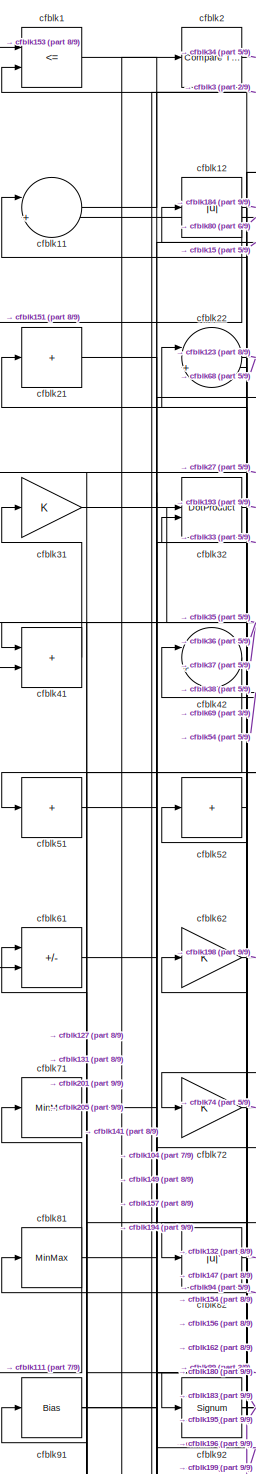
[diagram: root canvas - part 1/9, top left region]
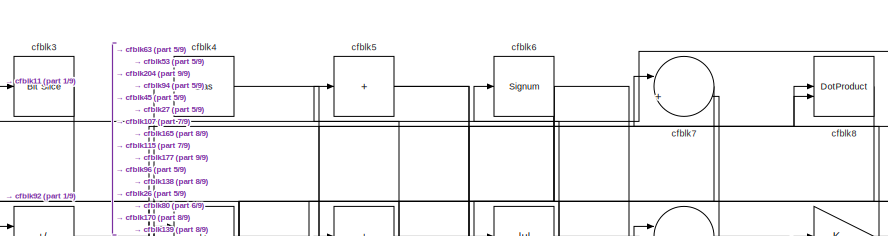
[diagram: root canvas - part 2/9, top center region]
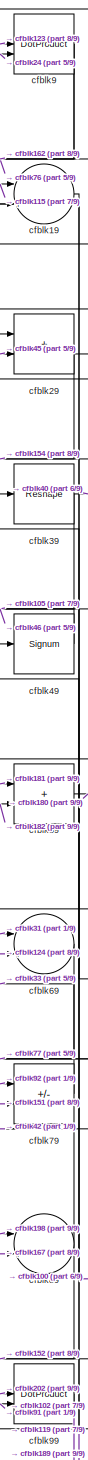
[diagram: root canvas - part 3/9, top right region]
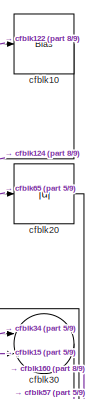
[diagram: root canvas - part 4/9, top right region]
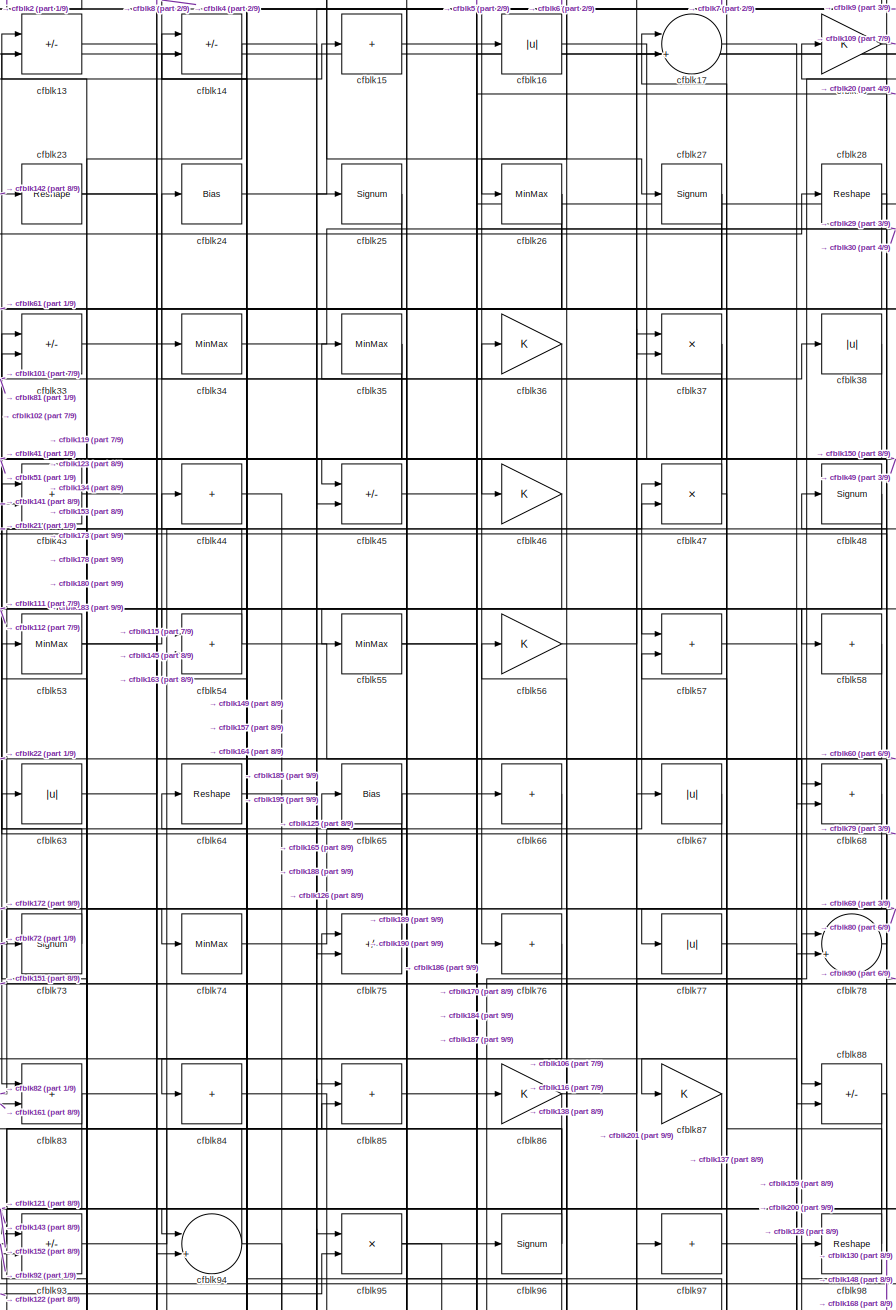
[diagram: root canvas - part 5/9, top center region]
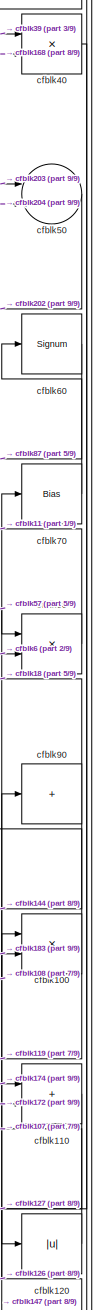
[diagram: root canvas - part 6/9, middle right region]
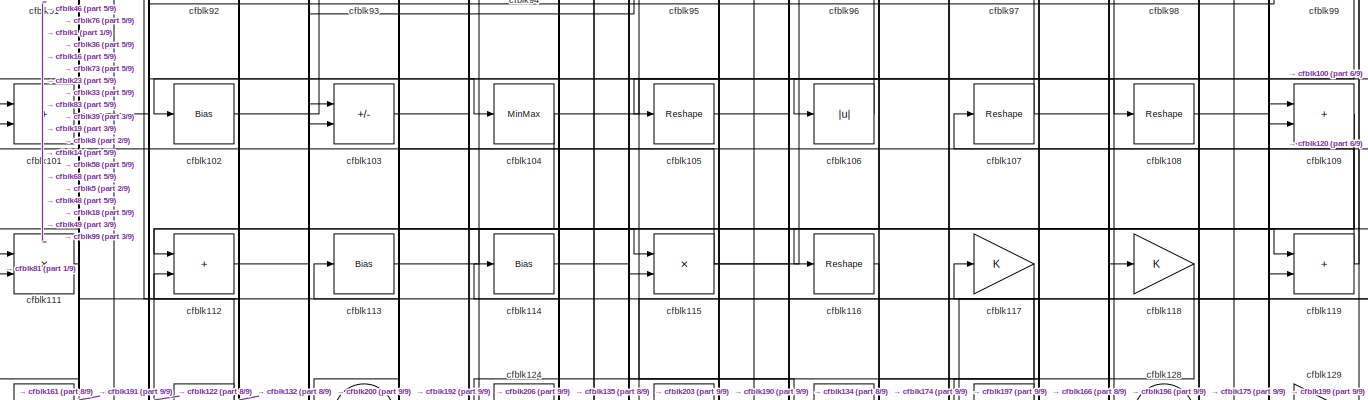
[diagram: root canvas - part 7/9, full width, middle band]
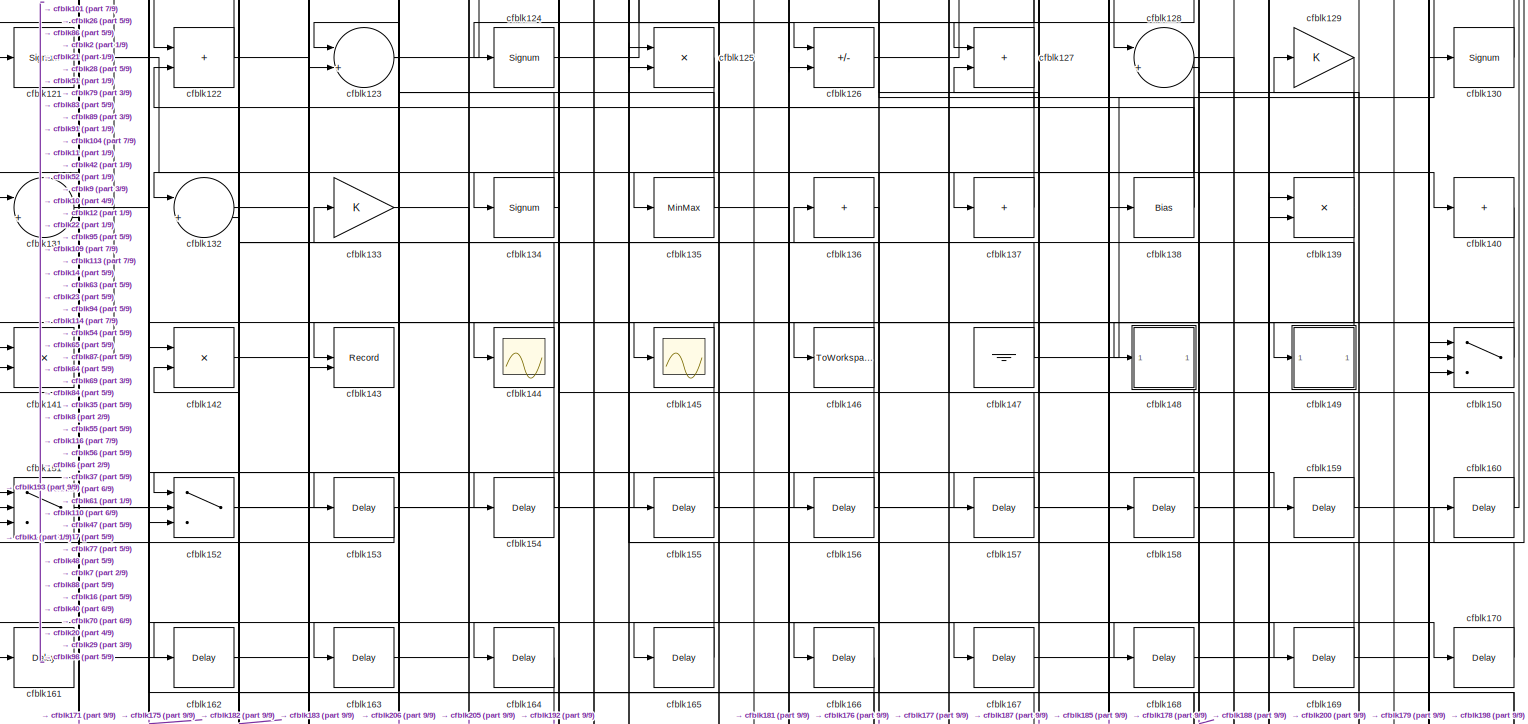
[diagram: root canvas - part 8/9, full width, bottom band]
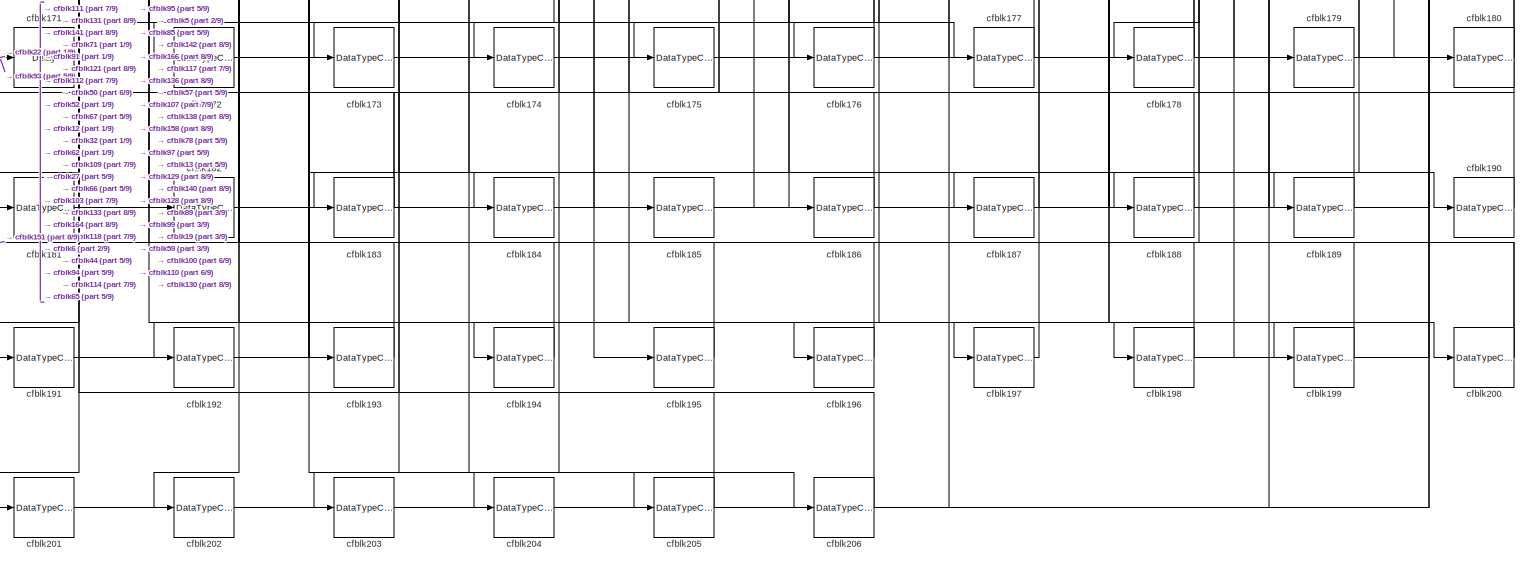
[diagram: root canvas - part 9/9, full width, bottom band]
MODEL slx_ca996fd6839e
KIND model
CONFIG AbsTol = auto
CONFIG EnableMultiTasking = off
CONFIG FixedStep = auto
CONFIG MaxStep = auto
CONFIG MinStep = auto
CONFIG RelTol = 1e-3
CONFIG SampleTimeConstraint = Unconstrained
CONFIG SolverName = VariableStepAuto
CONFIG StartTime = 0.0
CONFIG StopTime = 10.0
BLOCK [RelationalOperator] cfblk1
  InputSameDT = off
  Operator = <=
  OutDataTypeStr = boolean
BLOCK [Bias] cfblk10
  Bias = 0.0
  SaturateOnIntegerOverflow = off
BLOCK [Product] cfblk100
  Inputs = */
  RndMeth = Zero
  SaturateOnIntegerOverflow = on
BLOCK [Sum] cfblk101
  IconShape = rectangular
BLOCK [Bias] cfblk102
  Bias = 0.0
  SaturateOnIntegerOverflow = off
BLOCK [Sum] cfblk103
  IconShape = rectangular
  Inputs = +-
BLOCK [MinMax] cfblk104
BLOCK [Reshape] cfblk105
BLOCK [Abs] cfblk106
  SaturateOnIntegerOverflow = off
BLOCK [Reshape] cfblk107
BLOCK [Reshape] cfblk108
BLOCK [Sum] cfblk109
  IconShape = rectangular
BLOCK [Sum] cfblk11
  Inputs = |++
BLOCK [Sum] cfblk110
  IconShape = rectangular
BLOCK [Product] cfblk111
  Inputs = */
  RndMeth = Zero
  SaturateOnIntegerOverflow = on
BLOCK [Sum] cfblk112
  IconShape = rectangular
BLOCK [Bias] cfblk113
  Bias = 0.0
  SaturateOnIntegerOverflow = off
BLOCK [Bias] cfblk114
  Bias = 0.0
  SaturateOnIntegerOverflow = off
BLOCK [Product] cfblk115
  Inputs = */
  RndMeth = Zero
  SaturateOnIntegerOverflow = on
BLOCK [Reshape] cfblk116
BLOCK [Gain] cfblk117
BLOCK [Gain] cfblk118
BLOCK [Sum] cfblk119
  IconShape = rectangular
BLOCK [Abs] cfblk12
  SaturateOnIntegerOverflow = off
BLOCK [Abs] cfblk120
  SaturateOnIntegerOverflow = off
BLOCK [Signum] cfblk121
BLOCK [Sum] cfblk122
  IconShape = rectangular
BLOCK [Sum] cfblk123
  Inputs = |++
BLOCK [Signum] cfblk124
BLOCK [Product] cfblk125
  Inputs = */
  RndMeth = Zero
  SaturateOnIntegerOverflow = on
BLOCK [Sum] cfblk126
  IconShape = rectangular
  Inputs = +-
BLOCK [Sum] cfblk127
  IconShape = rectangular
BLOCK [Sum] cfblk128
  Inputs = |++
BLOCK [Gain] cfblk129
BLOCK [Sum] cfblk13
  IconShape = rectangular
  Inputs = +-
BLOCK [Signum] cfblk130
BLOCK [Sum] cfblk131
  Inputs = |++
BLOCK [Sum] cfblk132
  Inputs = |++
BLOCK [Gain] cfblk133
BLOCK [Signum] cfblk134
BLOCK [MinMax] cfblk135
BLOCK [Sum] cfblk136
  IconShape = rectangular
  Inputs = +
BLOCK [Sum] cfblk137
  IconShape = rectangular
  Inputs = +
BLOCK [Bias] cfblk138
  Bias = 0.0
  SaturateOnIntegerOverflow = off
BLOCK [Product] cfblk139
  Inputs = */
  RndMeth = Zero
  SaturateOnIntegerOverflow = on
BLOCK [Sum] cfblk14
  IconShape = rectangular
  Inputs = +-
BLOCK [Sum] cfblk140
  IconShape = rectangular
  Inputs = +
BLOCK [Product] cfblk141
  Inputs = */
  RndMeth = Zero
  SaturateOnIntegerOverflow = on
BLOCK [Product] cfblk142
  Inputs = */
  RndMeth = Zero
  SaturateOnIntegerOverflow = on
BLOCK [Record] cfblk143
  CompatibilityTag = XY
  FileSettingsInternal = {"entries":[{"content":{"excelSettings":{"content":{},"type":"Streamout.ExcelSettings"}},"type":"Streamout.FileSettingStorage","uuid":""}],"packageUris":["http:\/\/schema.mathworks.com\/mf0\/streamout_blocks\/R2020a"],"version":"1.0"}
  Layout = [1 1]
  SignalsInternal = {"entries":[{"content":{"signals":[{"content":{"blockPath":[],"dimensions":[1],"domain":"","lineColor":"#a2142f","plots":[1],"port":1,"signalID":1619,"signalName":"XY Graph:1"},"type":"RecordBlkView.Signal","uuid":""},{"content":{"blockPath":[],"dimensions":[1],"domain":"","lineColor":"#139fff","plots":[1],"port":2,"signalID":1622,"signalName":"XY Graph:2"},"type":"RecordBlkView.Signal","uuid":""}...<+146ch>
  VisualizationBindings = {"xyplotplugin":{"info":[{"series":[{"bindingParametersList":[{"parameter":"X-Axis","signalID":1619,"signalName":"XY Graph:1"},{"parameter":"Y-Axis","signalID":1622,"signalName":"XY Graph:2"}],"seriesID":23041}],"subplotID":1}]}}
  st = -1
BLOCK [Scope] cfblk144
  Floating = off
  NumInputPorts = 1
  ScopeSpecificationString = Simulink.scopes.TimeScopeBlockCfg('CurrentConfiguration', extmgr.ConfigurationSet(extmgr.Configuration('Core','General UI',true),extmgr.Configuration('Core','Source UI',true),extmgr.Configuration('Sources','WiredSimulink',true,'DataLoggingVariableName','ScopeData2','DataLoggingSaveFormat','Array','DataLoggingLimitDataPoints',true,'DataLoggingDecimation','1'),extmgr.Configuration('Visuals','Time Do...<+868ch>
BLOCK [Scope] cfblk145
  Floating = off
  NumInputPorts = 1
  ScopeSpecificationString = Simulink.scopes.TimeScopeBlockCfg('CurrentConfiguration', extmgr.ConfigurationSet(extmgr.Configuration('Core','General UI',true),extmgr.Configuration('Core','Source UI',true),extmgr.Configuration('Sources','WiredSimulink',true,'DataLoggingVariableName','ScopeData2','DataLoggingSaveFormat','Array','DataLoggingLimitDataPoints',true,'DataLoggingDecimation','1'),extmgr.Configuration('Visuals','Time Do...<+868ch>
BLOCK [ToWorkspace] cfblk146
  MaxDataPoints = inf
  SampleTime = -1
  SaveFormat = Timeseries
  VariableName = simout
BLOCK [Ground] cfblk147
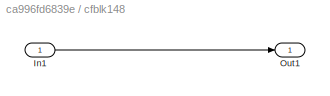
BLOCK [SubSystem] cfblk148
  LibrarySourceBlock = hdlsllib/Ports &\nSubsystems/Subsystem
BLOCK [Inport] cfblk148/In1
BLOCK [Outport] cfblk148/Out1
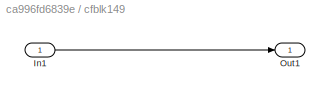
BLOCK [SubSystem] cfblk149
  LibrarySourceBlock = hdlsllib/Ports &\nSubsystems/Subsystem
BLOCK [Inport] cfblk149/In1
BLOCK [Outport] cfblk149/Out1
BLOCK [Sum] cfblk15
  IconShape = rectangular
  Inputs = +
BLOCK [Switch] cfblk150
  InputSameDT = off
  SaturateOnIntegerOverflow = off
BLOCK [Switch] cfblk151
  InputSameDT = off
  SaturateOnIntegerOverflow = off
BLOCK [Switch] cfblk152
  InputSameDT = off
  SaturateOnIntegerOverflow = off
BLOCK [Delay] cfblk153
  InputPortMap = u0
  SampleTime = 1
BLOCK [Delay] cfblk154
  InputPortMap = u0
  SampleTime = 1
BLOCK [Delay] cfblk155
  InputPortMap = u0
  SampleTime = 1
BLOCK [Delay] cfblk156
  InputPortMap = u0
  SampleTime = 1
BLOCK [Delay] cfblk157
  InputPortMap = u0
  SampleTime = 1
BLOCK [Delay] cfblk158
  InputPortMap = u0
  SampleTime = 1
BLOCK [Delay] cfblk159
  InputPortMap = u0
  SampleTime = 1
BLOCK [Abs] cfblk16
  SaturateOnIntegerOverflow = off
BLOCK [Delay] cfblk160
  InputPortMap = u0
  SampleTime = 1
BLOCK [Delay] cfblk161
  InputPortMap = u0
  SampleTime = 1
BLOCK [Delay] cfblk162
  InputPortMap = u0
  SampleTime = 1
BLOCK [Delay] cfblk163
  InputPortMap = u0
  SampleTime = 1
BLOCK [Delay] cfblk164
  InputPortMap = u0
  SampleTime = 1
BLOCK [Delay] cfblk165
  InputPortMap = u0
  SampleTime = 1
BLOCK [Delay] cfblk166
  InputPortMap = u0
  SampleTime = 1
BLOCK [Delay] cfblk167
  InputPortMap = u0
  SampleTime = 1
BLOCK [Delay] cfblk168
  InputPortMap = u0
  SampleTime = 1
BLOCK [Delay] cfblk169
  InputPortMap = u0
  SampleTime = 1
BLOCK [Sum] cfblk17
  Inputs = |++
BLOCK [Delay] cfblk170
  InputPortMap = u0
  SampleTime = 1
BLOCK [Delay] cfblk171
  InputPortMap = u0
  SampleTime = 1
BLOCK [DataTypeConversion] cfblk172
  OutDataTypeStr = uint8
  RndMeth = Floor
  SaturateOnIntegerOverflow = off
BLOCK [DataTypeConversion] cfblk173
  OutDataTypeStr = uint8
  RndMeth = Floor
  SaturateOnIntegerOverflow = off
BLOCK [DataTypeConversion] cfblk174
  OutDataTypeStr = uint8
  RndMeth = Floor
  SaturateOnIntegerOverflow = off
BLOCK [DataTypeConversion] cfblk175
  OutDataTypeStr = uint8
  RndMeth = Floor
  SaturateOnIntegerOverflow = off
BLOCK [DataTypeConversion] cfblk176
  OutDataTypeStr = uint8
  RndMeth = Floor
  SaturateOnIntegerOverflow = off
BLOCK [DataTypeConversion] cfblk177
  OutDataTypeStr = uint8
  RndMeth = Floor
  SaturateOnIntegerOverflow = off
BLOCK [DataTypeConversion] cfblk178
  RndMeth = Floor
  SaturateOnIntegerOverflow = off
BLOCK [DataTypeConversion] cfblk179
  OutDataTypeStr = uint8
  RndMeth = Floor
  SaturateOnIntegerOverflow = off
BLOCK [Gain] cfblk18
BLOCK [DataTypeConversion] cfblk180
  RndMeth = Floor
  SaturateOnIntegerOverflow = off
BLOCK [DataTypeConversion] cfblk181
  OutDataTypeStr = uint8
  RndMeth = Floor
  SaturateOnIntegerOverflow = off
BLOCK [DataTypeConversion] cfblk182
  OutDataTypeStr = uint8
  RndMeth = Floor
  SaturateOnIntegerOverflow = off
BLOCK [DataTypeConversion] cfblk183
  RndMeth = Floor
  SaturateOnIntegerOverflow = off
BLOCK [DataTypeConversion] cfblk184
  OutDataTypeStr = uint8
  RndMeth = Floor
  SaturateOnIntegerOverflow = off
BLOCK [DataTypeConversion] cfblk185
  RndMeth = Floor
  SaturateOnIntegerOverflow = off
BLOCK [DataTypeConversion] cfblk186
  OutDataTypeStr = uint8
  RndMeth = Floor
  SaturateOnIntegerOverflow = off
BLOCK [DataTypeConversion] cfblk187
  RndMeth = Floor
  SaturateOnIntegerOverflow = off
BLOCK [DataTypeConversion] cfblk188
  OutDataTypeStr = uint8
  RndMeth = Floor
  SaturateOnIntegerOverflow = off
BLOCK [DataTypeConversion] cfblk189
  OutDataTypeStr = uint8
  RndMeth = Floor
  SaturateOnIntegerOverflow = off
BLOCK [Sum] cfblk19
  Inputs = |++
BLOCK [DataTypeConversion] cfblk190
  OutDataTypeStr = uint8
  RndMeth = Floor
  SaturateOnIntegerOverflow = off
BLOCK [DataTypeConversion] cfblk191
  OutDataTypeStr = uint8
  RndMeth = Floor
  SaturateOnIntegerOverflow = off
BLOCK [DataTypeConversion] cfblk192
  OutDataTypeStr = uint8
  RndMeth = Floor
  SaturateOnIntegerOverflow = off
BLOCK [DataTypeConversion] cfblk193
  OutDataTypeStr = uint8
  RndMeth = Floor
  SaturateOnIntegerOverflow = off
BLOCK [DataTypeConversion] cfblk194
  OutDataTypeStr = uint8
  RndMeth = Floor
  SaturateOnIntegerOverflow = off
BLOCK [DataTypeConversion] cfblk195
  OutDataTypeStr = uint8
  RndMeth = Floor
  SaturateOnIntegerOverflow = off
BLOCK [DataTypeConversion] cfblk196
  OutDataTypeStr = uint8
  RndMeth = Floor
  SaturateOnIntegerOverflow = off
BLOCK [DataTypeConversion] cfblk197
  OutDataTypeStr = uint8
  RndMeth = Floor
  SaturateOnIntegerOverflow = off
BLOCK [DataTypeConversion] cfblk198
  RndMeth = Floor
  SaturateOnIntegerOverflow = off
BLOCK [DataTypeConversion] cfblk199
  OutDataTypeStr = uint8
  RndMeth = Floor
  SaturateOnIntegerOverflow = off
BLOCK [Reference] cfblk2  REF=hdlsllib/Logic and Bit
Operations/Compare
To Constant
  SourceBlock = hdlsllib/Logic and Bit\nOperations/Compare\nTo Constant
  SourceType = Compare To Constant
BLOCK [Abs] cfblk20
  SaturateOnIntegerOverflow = off
BLOCK [DataTypeConversion] cfblk200
  RndMeth = Floor
  SaturateOnIntegerOverflow = off
BLOCK [DataTypeConversion] cfblk201
  OutDataTypeStr = uint8
  RndMeth = Floor
  SaturateOnIntegerOverflow = off
BLOCK [DataTypeConversion] cfblk202
  OutDataTypeStr = uint8
  RndMeth = Floor
  SaturateOnIntegerOverflow = off
BLOCK [DataTypeConversion] cfblk203
  OutDataTypeStr = uint8
  RndMeth = Floor
  SaturateOnIntegerOverflow = off
BLOCK [DataTypeConversion] cfblk204
  OutDataTypeStr = uint8
  RndMeth = Floor
  SaturateOnIntegerOverflow = off
BLOCK [DataTypeConversion] cfblk205
  OutDataTypeStr = uint8
  RndMeth = Floor
  SaturateOnIntegerOverflow = off
BLOCK [DataTypeConversion] cfblk206
  OutDataTypeStr = uint8
  RndMeth = Floor
  SaturateOnIntegerOverflow = off
BLOCK [Sum] cfblk21
  IconShape = rectangular
  Inputs = +
BLOCK [Sum] cfblk22
  Inputs = |++
BLOCK [Reshape] cfblk23
BLOCK [Bias] cfblk24
  Bias = 0.0
  SaturateOnIntegerOverflow = off
BLOCK [Signum] cfblk25
BLOCK [MinMax] cfblk26
BLOCK [Signum] cfblk27
BLOCK [Reshape] cfblk28
BLOCK [Sum] cfblk29
  IconShape = rectangular
BLOCK [Reference] cfblk3  REF=hdlsllib/Logic and Bit
Operations/Bit Slice
  SourceBlock = hdlsllib/Logic and Bit\nOperations/Bit Slice
  SourceType = Bit Slice
BLOCK [Sum] cfblk30
  Inputs = |++
BLOCK [Gain] cfblk31
BLOCK [DotProduct] cfblk32
  OutDataTypeStr = Inherit: Inherit via internal rule
BLOCK [Sum] cfblk33
  IconShape = rectangular
  Inputs = +-
BLOCK [MinMax] cfblk34
BLOCK [MinMax] cfblk35
BLOCK [Gain] cfblk36
BLOCK [Product] cfblk37
  Inputs = */
  RndMeth = Zero
  SaturateOnIntegerOverflow = on
BLOCK [Abs] cfblk38
  SaturateOnIntegerOverflow = off
BLOCK [Reshape] cfblk39
BLOCK [Bias] cfblk4
  Bias = 0.0
  SaturateOnIntegerOverflow = off
BLOCK [Product] cfblk40
  Inputs = */
  RndMeth = Zero
  SaturateOnIntegerOverflow = on
BLOCK [Sum] cfblk41
  IconShape = rectangular
BLOCK [Sum] cfblk42
  Inputs = |++
BLOCK [Sum] cfblk43
  IconShape = rectangular
BLOCK [Sum] cfblk44
  IconShape = rectangular
  Inputs = +
BLOCK [Sum] cfblk45
  IconShape = rectangular
  Inputs = +-
BLOCK [Gain] cfblk46
BLOCK [Product] cfblk47
  Inputs = */
  RndMeth = Zero
  SaturateOnIntegerOverflow = on
BLOCK [Signum] cfblk48
BLOCK [Signum] cfblk49
BLOCK [Sum] cfblk5
  IconShape = rectangular
  Inputs = +
BLOCK [Sum] cfblk50
  Inputs = |++
BLOCK [Sum] cfblk51
  IconShape = rectangular
  Inputs = +
BLOCK [Sum] cfblk52
  IconShape = rectangular
  Inputs = +
BLOCK [MinMax] cfblk53
BLOCK [Sum] cfblk54
  IconShape = rectangular
BLOCK [MinMax] cfblk55
BLOCK [Gain] cfblk56
BLOCK [Sum] cfblk57
  IconShape = rectangular
BLOCK [Sum] cfblk58
  IconShape = rectangular
  Inputs = +
BLOCK [Sum] cfblk59
  IconShape = rectangular
BLOCK [Signum] cfblk6
BLOCK [Signum] cfblk60
BLOCK [Sum] cfblk61
  IconShape = rectangular
  Inputs = +-
BLOCK [Gain] cfblk62
BLOCK [Abs] cfblk63
  SaturateOnIntegerOverflow = off
BLOCK [Reshape] cfblk64
BLOCK [Bias] cfblk65
  Bias = 0.0
  SaturateOnIntegerOverflow = off
BLOCK [Sum] cfblk66
  IconShape = rectangular
  Inputs = +
BLOCK [Abs] cfblk67
  SaturateOnIntegerOverflow = off
BLOCK [Sum] cfblk68
  IconShape = rectangular
BLOCK [Sum] cfblk69
  Inputs = |++
BLOCK [Sum] cfblk7
  Inputs = |++
BLOCK [Bias] cfblk70
  Bias = 0.0
  SaturateOnIntegerOverflow = off
BLOCK [MinMax] cfblk71
BLOCK [Gain] cfblk72
BLOCK [Signum] cfblk73
BLOCK [MinMax] cfblk74
BLOCK [Sum] cfblk75
  IconShape = rectangular
  Inputs = +-
BLOCK [Sum] cfblk76
  IconShape = rectangular
  Inputs = +
BLOCK [Abs] cfblk77
  SaturateOnIntegerOverflow = off
BLOCK [Sum] cfblk78
  Inputs = |++
BLOCK [Sum] cfblk79
  IconShape = rectangular
  Inputs = +-
BLOCK [DotProduct] cfblk8
  OutDataTypeStr = Inherit: Inherit via internal rule
BLOCK [Product] cfblk80
  Inputs = */
  RndMeth = Zero
  SaturateOnIntegerOverflow = on
BLOCK [MinMax] cfblk81
BLOCK [Abs] cfblk82
  SaturateOnIntegerOverflow = off
BLOCK [Sum] cfblk83
  IconShape = rectangular
BLOCK [Sum] cfblk84
  IconShape = rectangular
  Inputs = +
BLOCK [Sum] cfblk85
  IconShape = rectangular
BLOCK [Gain] cfblk86
BLOCK [Gain] cfblk87
BLOCK [Sum] cfblk88
  IconShape = rectangular
  Inputs = +-
BLOCK [Sum] cfblk89
  Inputs = |++
BLOCK [DotProduct] cfblk9
  OutDataTypeStr = Inherit: Inherit via internal rule
BLOCK [Sum] cfblk90
  IconShape = rectangular
  Inputs = +
BLOCK [Bias] cfblk91
  Bias = 0.0
  SaturateOnIntegerOverflow = off
BLOCK [Signum] cfblk92
BLOCK [Sum] cfblk93
  IconShape = rectangular
  Inputs = +-
BLOCK [Sum] cfblk94
  Inputs = |++
BLOCK [Product] cfblk95
  Inputs = */
  RndMeth = Zero
  SaturateOnIntegerOverflow = on
BLOCK [Signum] cfblk96
BLOCK [Sum] cfblk97
  IconShape = rectangular
  Inputs = +
BLOCK [Reshape] cfblk98
BLOCK [DotProduct] cfblk99
  OutDataTypeStr = Inherit: Inherit via internal rule
NET cfblk100:1 -> cfblk119:2, cfblk39:1
NET cfblk101:1 -> cfblk161:1, cfblk36:1
LINE cfblk102:1 -> cfblk16:1
LINE cfblk103:1 -> cfblk190:1
NET cfblk104:1 -> cfblk108:1, cfblk122:1
LINE cfblk105:1 -> cfblk19:2
LINE cfblk106:1 -> cfblk14:1
NET cfblk107:1 -> cfblk199:1, cfblk5:1
LINE cfblk108:1 -> cfblk100:1
NET cfblk109:1 -> cfblk132:2, cfblk203:1
LINE cfblk10:1 -> cfblk124:1
LINE cfblk110:1 -> cfblk127:1
LINE cfblk111:1 -> cfblk191:1
LINE cfblk112:1 -> cfblk206:1
LINE cfblk113:1 -> cfblk115:1
LINE cfblk114:1 -> cfblk197:1
NET cfblk115:1 -> cfblk101:2, cfblk19:1, cfblk8:2
LINE cfblk116:1 -> cfblk166:1
LINE cfblk117:1 -> cfblk196:1
LINE cfblk118:1 -> cfblk174:1
NET cfblk119:1 -> cfblk49:1, cfblk73:1
LINE cfblk11:1 -> cfblk3:1
LINE cfblk120:1 -> cfblk107:1
NET cfblk121:1 -> cfblk140:1, cfblk175:1
NET cfblk122:1 -> cfblk10:1, cfblk95:2
NET cfblk123:1 -> cfblk163:1, cfblk9:1
LINE cfblk124:1 -> cfblk69:2
LINE cfblk125:1 -> cfblk135:1
LINE cfblk126:1 -> cfblk90:1
NET cfblk127:1 -> cfblk122:2, cfblk61:1
NET cfblk128:1 -> cfblk146:1, cfblk179:1
LINE cfblk129:1 -> cfblk178:1
NET cfblk12:1 -> cfblk151:3, cfblk184:1
LINE cfblk130:1 -> cfblk98:1
LINE cfblk131:1 -> cfblk182:1
LINE cfblk132:1 -> cfblk150:2
LINE cfblk133:1 -> cfblk205:1
NET cfblk134:1 -> cfblk114:1, cfblk63:1
NET cfblk135:1 -> cfblk113:1, cfblk169:1
LINE cfblk136:1 -> cfblk176:1
LINE cfblk137:1 -> cfblk56:1
NET cfblk138:1 -> cfblk35:1, cfblk6:1
NET cfblk139:1 -> cfblk155:1, cfblk7:1
LINE cfblk13:1 -> cfblk58:1
LINE cfblk140:1 -> cfblk188:1
LINE cfblk141:1 -> cfblk2:1
LINE cfblk142:1 -> cfblk23:1
NET cfblk147:1 -> cfblk42:2, cfblk70:1
LINE cfblk148/In1:1 -> cfblk148/Out1:1
LINE cfblk148:1 -> cfblk156:1
LINE cfblk149/In1:1 -> cfblk149/Out1:1
LINE cfblk149:1 -> cfblk54:2
NET cfblk14:1 -> cfblk153:1, cfblk37:2
LINE cfblk150:1 -> cfblk143:1
NET cfblk151:1 -> cfblk28:1, cfblk79:2
NET cfblk152:1 -> cfblk139:2, cfblk29:1
LINE cfblk153:1 -> cfblk1:1
LINE cfblk154:1 -> cfblk1:2
LINE cfblk155:1 -> cfblk152:1
LINE cfblk156:1 -> cfblk11:1
LINE cfblk157:1 -> cfblk14:2
LINE cfblk158:1 -> cfblk139:1
LINE cfblk159:1 -> cfblk37:1
LINE cfblk15:1 -> cfblk30:2
LINE cfblk160:1 -> cfblk127:2
LINE cfblk161:1 -> cfblk83:2
LINE cfblk162:1 -> cfblk22:2
LINE cfblk163:1 -> cfblk94:2
LINE cfblk164:1 -> cfblk192:1
LINE cfblk165:1 -> cfblk95:1
LINE cfblk166:1 -> cfblk181:1
LINE cfblk167:1 -> cfblk89:2
LINE cfblk168:1 -> cfblk40:2
LINE cfblk169:1 -> cfblk125:1
LINE cfblk16:1 -> cfblk150:1
LINE cfblk170:1 -> cfblk7:2
LINE cfblk171:1 -> cfblk131:2
LINE cfblk172:1 -> cfblk110:2
LINE cfblk173:1 -> cfblk67:1
LINE cfblk174:1 -> cfblk110:1
LINE cfblk175:1 -> cfblk118:1
LINE cfblk176:1 -> cfblk142:2
LINE cfblk177:1 -> cfblk136:1
NET cfblk178:1 -> cfblk13:2, cfblk142:1
LINE cfblk179:1 -> cfblk129:1
LINE cfblk17:1 -> cfblk150:3
NET cfblk180:1 -> cfblk171:1, cfblk22:1, cfblk93:2
LINE cfblk181:1 -> cfblk59:1
LINE cfblk182:1 -> cfblk59:2
NET cfblk183:1 -> cfblk100:2, cfblk141:2, cfblk52:1
LINE cfblk184:1 -> cfblk66:1
NET cfblk185:1 -> cfblk138:1, cfblk78:2
LINE cfblk186:1 -> cfblk44:1
NET cfblk187:1 -> cfblk158:1, cfblk57:2
LINE cfblk188:1 -> cfblk85:1
LINE cfblk189:1 -> cfblk85:2
LINE cfblk18:1 -> cfblk109:1
LINE cfblk190:1 -> cfblk65:1
LINE cfblk191:1 -> cfblk103:1
LINE cfblk192:1 -> cfblk103:2
LINE cfblk193:1 -> cfblk151:1
LINE cfblk194:1 -> cfblk32:1
LINE cfblk195:1 -> cfblk32:2
LINE cfblk196:1 -> cfblk12:1
LINE cfblk197:1 -> cfblk117:1
NET cfblk198:1 -> cfblk130:1, cfblk151:2, cfblk89:1
LINE cfblk199:1 -> cfblk62:1
LINE cfblk19:1 -> cfblk189:1
LINE cfblk1:1 -> cfblk104:1
NET cfblk200:1 -> cfblk112:2, cfblk128:2
LINE cfblk201:1 -> cfblk97:1
LINE cfblk202:1 -> cfblk99:1
LINE cfblk203:1 -> cfblk50:1
LINE cfblk204:1 -> cfblk50:2
LINE cfblk205:1 -> cfblk91:1
LINE cfblk206:1 -> cfblk133:1
LINE cfblk20:1 -> cfblk160:1
LINE cfblk21:1 -> cfblk157:1
NET cfblk22:1 -> cfblk123:2, cfblk68:1
NET cfblk23:1 -> cfblk115:2, cfblk145:1
LINE cfblk24:1 -> cfblk9:2
NET cfblk25:1 -> cfblk54:1, cfblk75:2
NET cfblk26:1 -> cfblk141:1, cfblk43:2, cfblk55:1
NET cfblk27:1 -> cfblk173:1, cfblk61:2, cfblk84:1
NET cfblk28:1 -> cfblk125:2, cfblk168:1
LINE cfblk29:1 -> cfblk154:1
LINE cfblk2:1 -> cfblk34:1
LINE cfblk30:1 -> cfblk57:1
LINE cfblk31:1 -> cfblk69:1
LINE cfblk32:1 -> cfblk193:1
LINE cfblk33:1 -> cfblk109:2
LINE cfblk34:1 -> cfblk30:1
NET cfblk35:1 -> cfblk45:1, cfblk51:1, cfblk93:1
LINE cfblk36:1 -> cfblk41:2
NET cfblk37:1 -> cfblk72:1, cfblk82:1, cfblk83:1
LINE cfblk38:1 -> cfblk41:1
NET cfblk39:1 -> cfblk105:1, cfblk40:1
LINE cfblk3:1 -> cfblk92:1
LINE cfblk40:1 -> cfblk120:1
LINE cfblk41:1 -> cfblk31:1
LINE cfblk42:1 -> cfblk131:1
LINE cfblk43:1 -> cfblk88:2
LINE cfblk44:1 -> cfblk185:1
LINE cfblk45:1 -> cfblk29:2
LINE cfblk46:1 -> cfblk111:1
NET cfblk47:1 -> cfblk137:1, cfblk24:1
NET cfblk48:1 -> cfblk112:1, cfblk128:1
LINE cfblk49:1 -> cfblk46:1
LINE cfblk4:1 -> cfblk27:1
LINE cfblk50:1 -> cfblk202:1
LINE cfblk51:1 -> cfblk149:1
LINE cfblk52:1 -> cfblk132:1
NET cfblk53:1 -> cfblk4:1, cfblk68:2
NET cfblk54:1 -> cfblk21:1, cfblk88:1
NET cfblk55:1 -> cfblk170:1, cfblk86:1
LINE cfblk56:1 -> cfblk17:2
LINE cfblk57:1 -> cfblk80:1
LINE cfblk58:1 -> cfblk116:1
LINE cfblk59:1 -> cfblk180:1
NET cfblk5:1 -> cfblk177:1, cfblk96:1
LINE cfblk60:1 -> cfblk87:1
LINE cfblk61:1 -> cfblk15:1
LINE cfblk62:1 -> cfblk198:1
LINE cfblk63:1 -> cfblk8:1
LINE cfblk64:1 -> cfblk126:2
NET cfblk65:1 -> cfblk123:1, cfblk164:1, cfblk20:1
LINE cfblk66:1 -> cfblk183:1
LINE cfblk67:1 -> cfblk172:1
LINE cfblk68:1 -> cfblk106:1
LINE cfblk69:1 -> cfblk77:1
NET cfblk6:1 -> cfblk204:1, cfblk45:2, cfblk80:2, cfblk94:1
LINE cfblk70:1 -> cfblk60:1
NET cfblk71:1 -> cfblk194:1, cfblk201:1
LINE cfblk72:1 -> cfblk74:1
LINE cfblk73:1 -> cfblk13:1
LINE cfblk74:1 -> cfblk47:1
LINE cfblk75:1 -> cfblk43:1
LINE cfblk76:1 -> cfblk101:1
LINE cfblk77:1 -> cfblk159:1
LINE cfblk78:1 -> cfblk48:1
LINE cfblk79:1 -> cfblk33:1
LINE cfblk7:1 -> cfblk26:1
LINE cfblk80:1 -> cfblk11:2
NET cfblk81:1 -> cfblk111:2, cfblk33:2, cfblk71:1
LINE cfblk82:1 -> cfblk47:2
NET cfblk83:1 -> cfblk119:1, cfblk152:2
LINE cfblk84:1 -> cfblk126:1
LINE cfblk85:1 -> cfblk187:1
NET cfblk86:1 -> cfblk121:1, cfblk78:1
LINE cfblk87:1 -> cfblk134:1
NET cfblk88:1 -> cfblk143:2, cfblk148:1
NET cfblk89:1 -> cfblk152:3, cfblk42:1
LINE cfblk8:1 -> cfblk165:1
NET cfblk90:1 -> cfblk144:1, cfblk18:1
NET cfblk91:1 -> cfblk167:1, cfblk99:2
NET cfblk92:1 -> cfblk25:1, cfblk79:1
LINE cfblk93:1 -> cfblk75:1
NET cfblk94:1 -> cfblk195:1, cfblk81:1
NET cfblk95:1 -> cfblk186:1, cfblk38:1
NET cfblk96:1 -> cfblk53:1, cfblk64:1
LINE cfblk97:1 -> cfblk200:1
LINE cfblk98:1 -> cfblk17:1
LINE cfblk99:1 -> cfblk102:1
NET cfblk9:1 -> cfblk162:1, cfblk76:1
note: NET lines group one-source signal fan-out (src -> all destinations, sorted); 1:1 wires keep LINE
